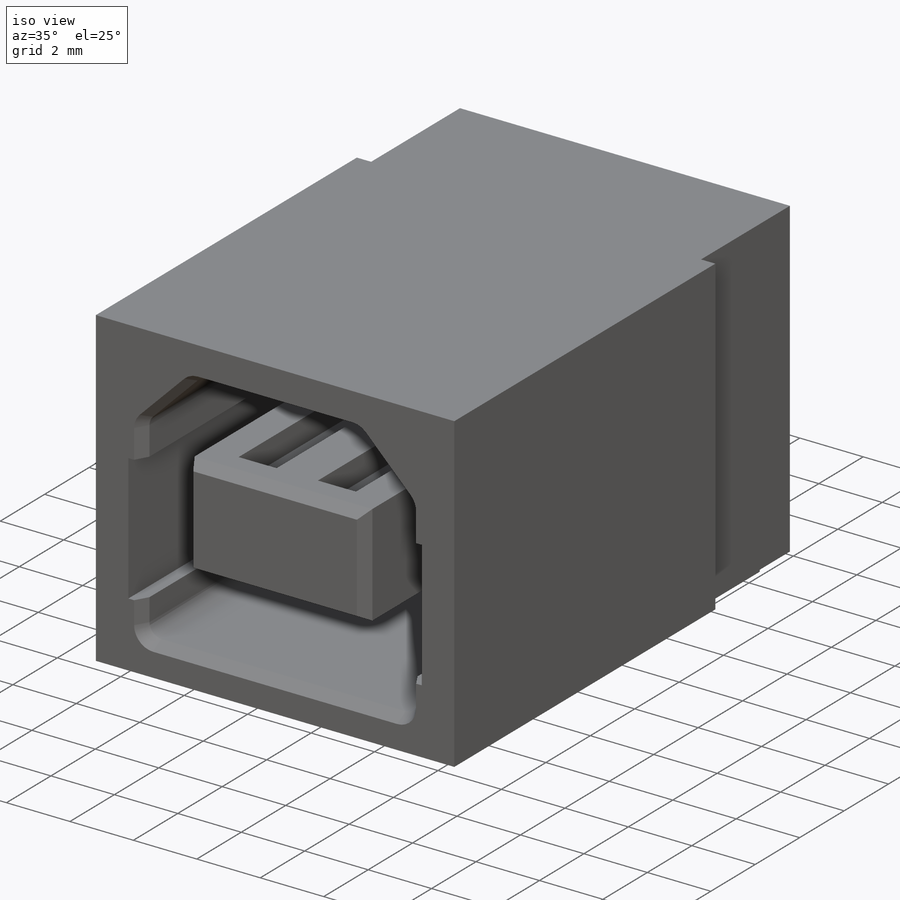
[diagram: iso view]
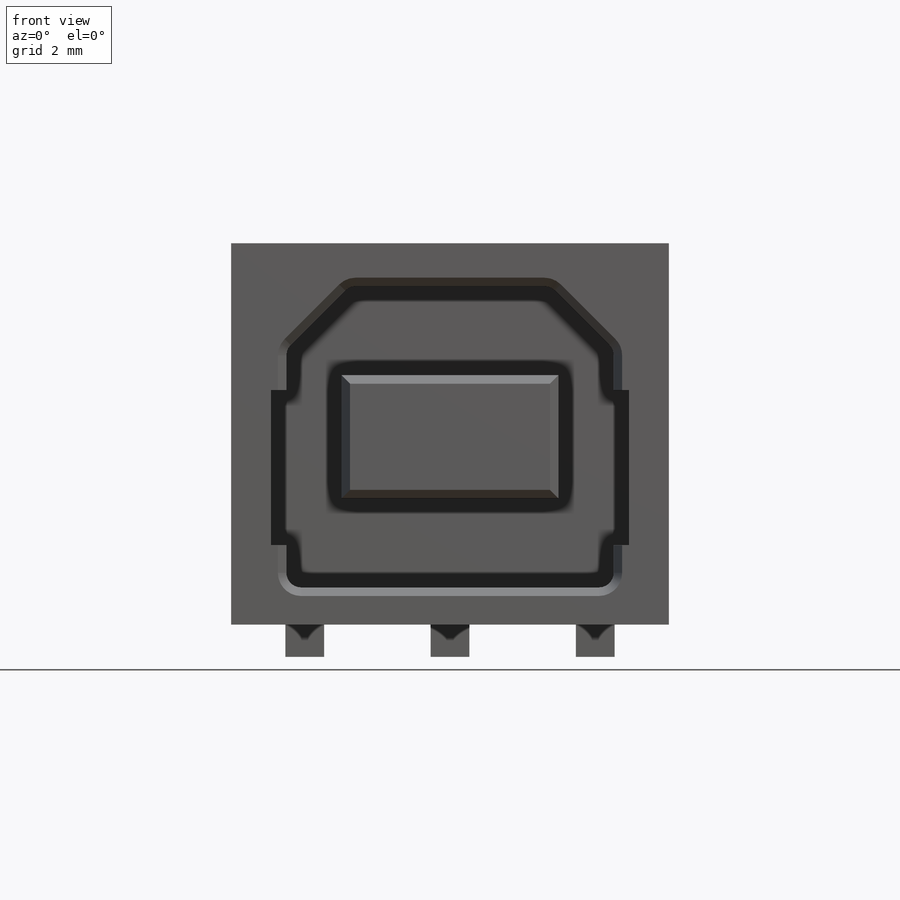
[diagram: front view]
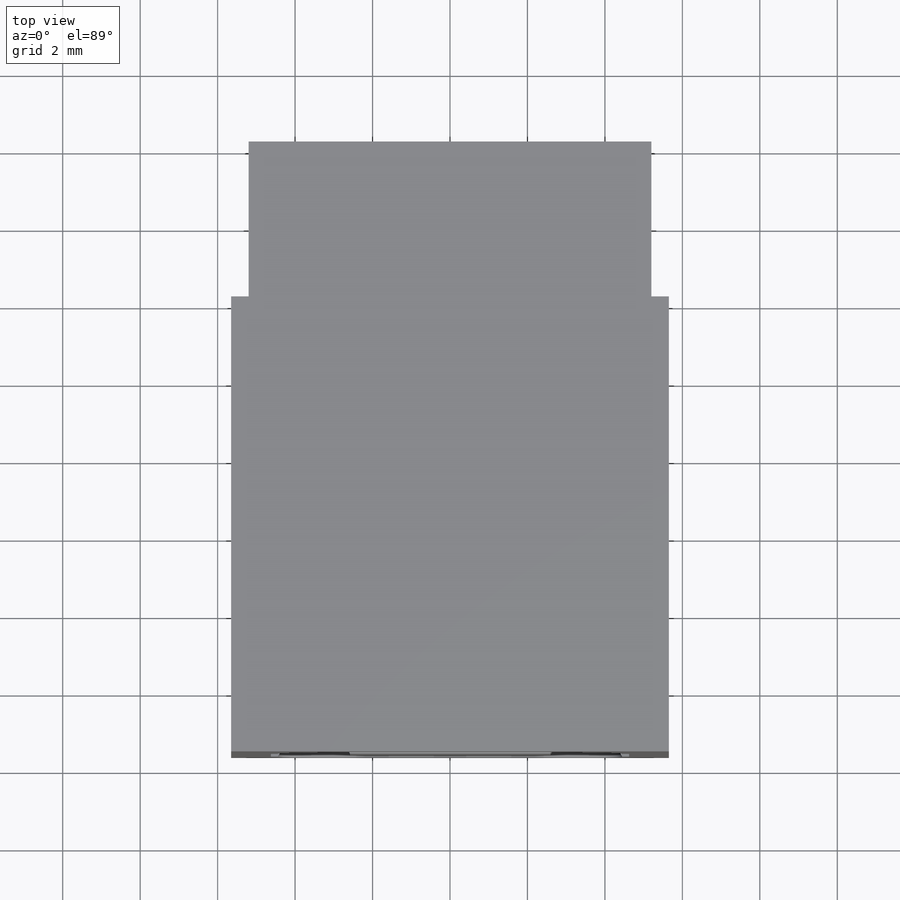
[diagram: top view]
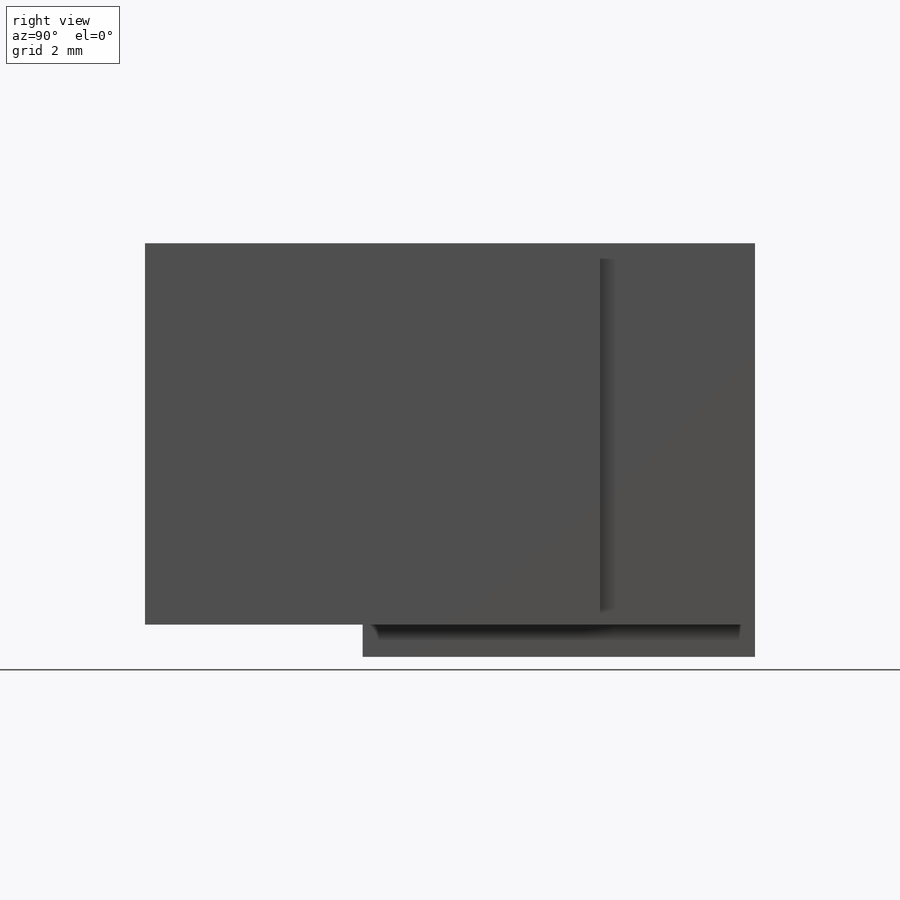
[diagram: right view]
SOLIDWORKS PART (.sldprt)
format: sldprt  version: not decoded by parser v0  size: 387,584 bytes
history: native  units: mm
features: sketch x7, cut_extrude x5, plane x2, extrude x2, chamfer x2, material x1 (+12 scaffold rows collapsed)
feature tree (31):
  scaffold x12  (default folders/planes/origin — collapsed)
  material  "PTFE (general)"
  plane  "Plane1"  Offset=0.38mm
  sketch  "Sketch1"  dims[D1=11.3mm D2=10.25mm D3=0.4mm D4=5.65mm]
  extrude  "Boss-Extrude1"  Depth=15.75mm
  sketch  "Sketch2"  dims[D1=10.4mm D2=5.2mm D3=4.0mm]
  cut_extrude  "Cut-Extrude1"  Depth=15.75mm
  sketch  "Sketch3"  dims[c1.D16=0.38mm c1.D1=4.84mm c1.D2=~1.780309mm c2.D2=135.0deg c2.D3=4.225mm c2.D4=8.45mm c2.D5=7.78mm c2.D6=1.63mm c2.D7=5.6mm c2.D8=2.8mm c2.D9=3.18mm c2.D10=1.39mm c2.D11=3.89mm c3.D10=0.8mm c3.D11=5.25mm c3.D12=4.45mm c3.D13=2.3mm c3.D14=2.3mm c3.D15=1.36mm c3.D17=0.4mm c3.D18=4.0mm c3.D19=2.0mm]
  cut_extrude  "Cut-Extrude2"  Depth=8.38mm
  chamfer  "Chamfer1"  Distance=0.38mm Angle=30deg
  chamfer  "Chamfer2"  Distance=0.38mm Angle=30deg
  sketch  "Sketch4"  dims[c1.D1=1.0mm c1.D2=6.0mm c1.D3=0.5mm c1.D4=8.5mm c1.D5=4.25mm c1.D6=10.835mm c2.D6=90.0deg c3.D6=1.5mm]
  extrude  "Boss-Extrude2"  Depth=0.83mm
  plane  "Plane2"  Offset=1mm
  sketch  "Sketch5"  dims[D1=1.2mm D2=1.25mm D3=1.25mm D4=0.75mm]
  cut_extrude  "Cut-Extrude3"  [1 undecoded]
  sketch  "Sketch6"
  cut_extrude  "Cut-Extrude4"  Depth=1.29mm
  sketch  "Sketch7"  dims[D1=0.3mm D2=0.6mm D3=2.5mm D4=2.66mm D5=1.0mm]
  cut_extrude  "Cut-Extrude5"  Depth=2mm
decode coverage: 14 of 16 modeling features carry decoded parameters
note: ~ marks probable driven/reference dimensions
note: 1 parameter value undecoded
note: suppression state not decoded; provenance and decode notes live in map.json
